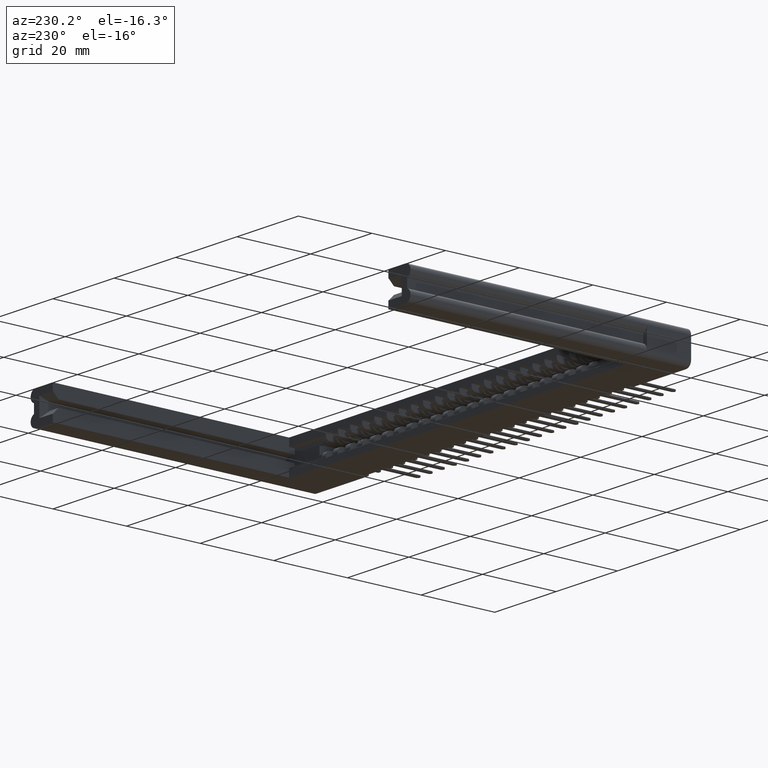
[diagram: clean part render]
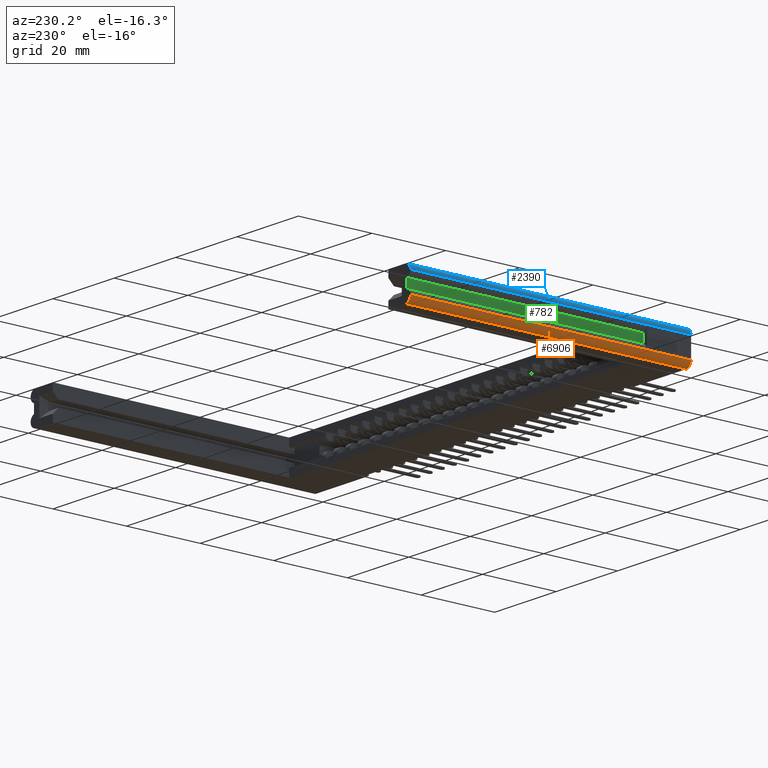
[diagram: same view with three faces highlighted in distinct colors, each labeled with its STEP entity id]
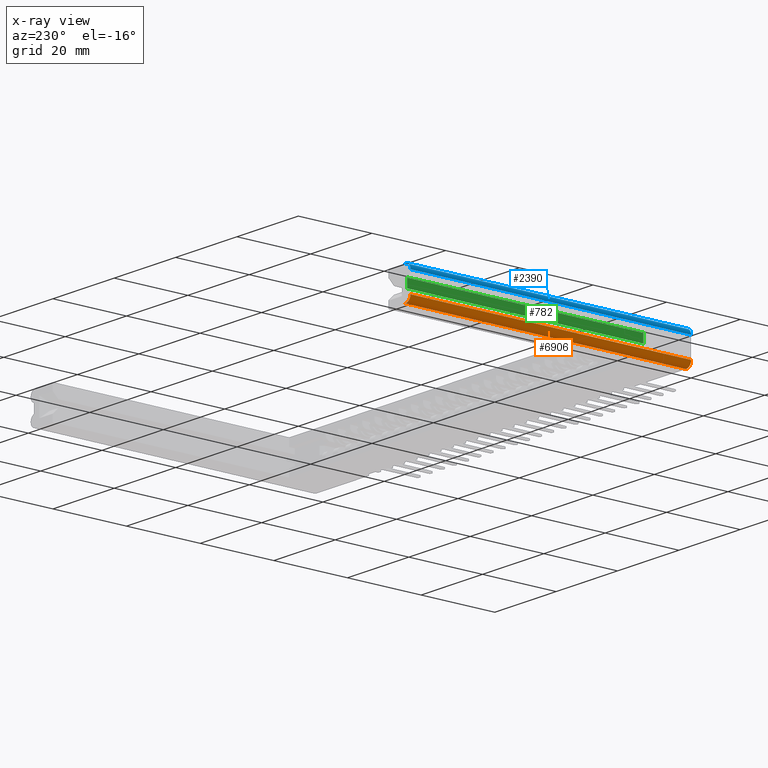
[diagram: x-ray of the same camera — body ghosted, the three highlighted faces saturated]
A machine part, auxiliary view with three faces highlighted in distinct colors.
The next image is the same camera in x-ray (body ghosted, the three faces saturated) — at least one of them is partly hidden behind the body in this view.
Their STEP definitions:

[orange] entity #6906 — the highlighted cylindrical surface (edge-blend (fillet) strip) has radius 1.6256 mm, axis along (-0, -1, 0).
#366 = VECTOR ( 'NONE', #16451, 39.37007874015748100 ) ;
#2374 = AXIS2_PLACEMENT_3D ( 'NONE', #6125, #18831, #7995 ) ;
#2595 = EDGE_CURVE ( 'NONE', #3967, #17477, #20275, .T. ) ;
#3131 = ORIENTED_EDGE ( 'NONE', *, *, #4844, .F. ) ;
#3291 = VERTEX_POINT ( 'NONE', #6672 ) ;
#3967 = VERTEX_POINT ( 'NONE', #7361 ) ;
#4193 = EDGE_CURVE ( 'NONE', #14215, #3967, #9808, .T. ) ;
#4844 = EDGE_CURVE ( 'NONE', #17477, #3291, #14884, .T. ) ;
#5254 = EDGE_CURVE ( 'NONE', #3291, #14215, #15733, .T. ) ;
#6125 = CARTESIAN_POINT ( 'NONE',  ( 0.06400000000000118100, 2.999999999999999600, -0.1075000000000000100 ) ) ;
#6672 = CARTESIAN_POINT ( 'NONE',  ( 0.06400000000000000100, 0.0000000000000000000, -0.1715000000000000100 ) ) ;
#6906 = ADVANCED_FACE ( 'NONE', ( #22323 ), #7953, .T. ) ;
#7361 = CARTESIAN_POINT ( 'NONE',  ( 1.177302919769926800E-015, 2.999999999999999600, -0.1075000000000000100 ) ) ;
#7884 = CARTESIAN_POINT ( 'NONE',  ( 0.06400000000000000100, 0.0000000000000000000, -0.1075000000000000100 ) ) ;
#7953 = CYLINDRICAL_SURFACE ( 'NONE', #11198, 0.06400000000000000100 ) ;
#7995 = DIRECTION ( 'NONE',  ( 1.000000000000000000, 0.0000000000000000000, 0.0000000000000000000 ) ) ;
#9582 = DIRECTION ( 'NONE',  ( -3.924343065899756400E-016, -1.000000000000000000, 0.0000000000000000000 ) ) ;
#9744 = DIRECTION ( 'NONE',  ( 0.0000000000000000000, 0.0000000000000000000, 1.000000000000000000 ) ) ;
#9808 = CIRCLE ( 'NONE', #2374, 0.06400000000000000100 ) ;
#10281 = DIRECTION ( 'NONE',  ( -3.924343065899756400E-016, -1.000000000000000000, 0.0000000000000000000 ) ) ;
#10742 = VECTOR ( 'NONE', #10281, 39.37007874015748100 ) ;
#11198 = AXIS2_PLACEMENT_3D ( 'NONE', #22140, #9582, #21980 ) ;
#11904 = CARTESIAN_POINT ( 'NONE',  ( 0.06400000000000125000, 2.999999999999999600, -0.1715000000000000100 ) ) ;
#12776 = CARTESIAN_POINT ( 'NONE',  ( 1.177302919769926800E-015, 2.999999999999999600, -0.1075000000000000100 ) ) ;
#14215 = VERTEX_POINT ( 'NONE', #11904 ) ;
#14884 = CIRCLE ( 'NONE', #20314, 0.06400000000000000100 ) ;
#15733 = LINE ( 'NONE', #18171, #366 ) ;
#16451 = DIRECTION ( 'NONE',  ( 3.924343065899756400E-016, 1.000000000000000000, -0.0000000000000000000 ) ) ;
#17477 = VERTEX_POINT ( 'NONE', #20490 ) ;
#18171 = CARTESIAN_POINT ( 'NONE',  ( 0.06400000000000000100, -2.511579562175844200E-017, -0.1715000000000000100 ) ) ;
#18831 = DIRECTION ( 'NONE',  ( -1.920455531574183000E-015, 1.000000000000000000, -0.0000000000000000000 ) ) ;
#20275 = LINE ( 'NONE', #12776, #10742 ) ;
#20314 = AXIS2_PLACEMENT_3D ( 'NONE', #7884, #20493, #9744 ) ;
#20490 = CARTESIAN_POINT ( 'NONE',  ( 0.0000000000000000000, 0.0000000000000000000, -0.1075000000000000100 ) ) ;
#20493 = DIRECTION ( 'NONE',  ( -0.0000000000000000000, -1.000000000000000000, -0.0000000000000000000 ) ) ;
#21291 = ORIENTED_EDGE ( 'NONE', *, *, #2595, .F. ) ;
#21314 = EDGE_LOOP ( 'NONE', ( #22819, #22947, #3131, #21291 ) ) ;
#21980 = DIRECTION ( 'NONE',  ( 1.000000000000000000, 0.0000000000000000000, 0.0000000000000000000 ) ) ;
#22140 = CARTESIAN_POINT ( 'NONE',  ( 0.06400000000000118100, 2.999999999999999600, -0.1075000000000000100 ) ) ;
#22323 = FACE_OUTER_BOUND ( 'NONE', #21314, .T. ) ;
#22819 = ORIENTED_EDGE ( 'NONE', *, *, #4193, .F. ) ;
#22947 = ORIENTED_EDGE ( 'NONE', *, *, #5254, .F. ) ;

[blue] entity #2390 — the highlighted cylindrical surface (edge-blend (fillet) strip) has radius 1.6256 mm, axis along (0, 1, 0).
#53 = DIRECTION ( 'NONE',  ( -3.924343065899756400E-016, -1.000000000000000000, 0.0000000000000000000 ) ) ;
#1674 = DIRECTION ( 'NONE',  ( -1.000000000000000000, 3.924343065899756400E-016, 0.0000000000000000000 ) ) ;
#1710 = DIRECTION ( 'NONE',  ( 3.924343065899756400E-016, 1.000000000000000000, 0.0000000000000000000 ) ) ;
#2028 = CARTESIAN_POINT ( 'NONE',  ( 0.06400000000000000100, -2.511579562175844200E-017, 0.1075000000000000000 ) ) ;
#2390 = ADVANCED_FACE ( 'NONE', ( #20014 ), #5547, .T. ) ;
#4378 = EDGE_CURVE ( 'NONE', #20551, #9149, #11224, .T. ) ;
#4652 = ORIENTED_EDGE ( 'NONE', *, *, #4378, .F. ) ;
#5547 = CYLINDRICAL_SURFACE ( 'NONE', #19649, 0.06400000000000000100 ) ;
#5959 = AXIS2_PLACEMENT_3D ( 'NONE', #17101, #6191, #18892 ) ;
#6191 = DIRECTION ( 'NONE',  ( -1.920455531574183000E-015, 1.000000000000000000, -0.0000000000000000000 ) ) ;
#8392 = DIRECTION ( 'NONE',  ( 3.924343065899756400E-016, 1.000000000000000000, -0.0000000000000000000 ) ) ;
#8463 = CIRCLE ( 'NONE', #5959, 0.06400000000000000100 ) ;
#8827 = EDGE_CURVE ( 'NONE', #9149, #13094, #8463, .T. ) ;
#9149 = VERTEX_POINT ( 'NONE', #14424 ) ;
#9367 = DIRECTION ( 'NONE',  ( -0.0000000000000000000, -1.000000000000000000, -0.0000000000000000000 ) ) ;
#10905 = VERTEX_POINT ( 'NONE', #14904 ) ;
#11224 = LINE ( 'NONE', #13887, #20745 ) ;
#11573 = AXIS2_PLACEMENT_3D ( 'NONE', #20151, #9367, #21933 ) ;
#11906 = LINE ( 'NONE', #21981, #20857 ) ;
#12152 = ORIENTED_EDGE ( 'NONE', *, *, #21700, .F. ) ;
#12354 = CARTESIAN_POINT ( 'NONE',  ( 0.06400000000000125000, 2.999999999999999600, 0.1715000000000000100 ) ) ;
#13094 = VERTEX_POINT ( 'NONE', #12354 ) ;
#13887 = CARTESIAN_POINT ( 'NONE',  ( 1.177302919769926800E-015, 2.999999999999999600, 0.1075000000000000000 ) ) ;
#14424 = CARTESIAN_POINT ( 'NONE',  ( 1.177302919769926800E-015, 2.999999999999999600, 0.1075000000000000000 ) ) ;
#14904 = CARTESIAN_POINT ( 'NONE',  ( 0.06400000000000000100, 0.0000000000000000000, 0.1715000000000000100 ) ) ;
#17101 = CARTESIAN_POINT ( 'NONE',  ( 0.06400000000000118100, 2.999999999999999600, 0.1075000000000000000 ) ) ;
#17774 = ORIENTED_EDGE ( 'NONE', *, *, #8827, .F. ) ;
#18137 = CIRCLE ( 'NONE', #11573, 0.06400000000000000100 ) ;
#18212 = EDGE_LOOP ( 'NONE', ( #17774, #4652, #12152, #20866 ) ) ;
#18418 = CARTESIAN_POINT ( 'NONE',  ( 0.0000000000000000000, 0.0000000000000000000, 0.1075000000000000000 ) ) ;
#18892 = DIRECTION ( 'NONE',  ( 1.000000000000000000, 0.0000000000000000000, 0.0000000000000000000 ) ) ;
#19649 = AXIS2_PLACEMENT_3D ( 'NONE', #2028, #1710, #1674 ) ;
#20014 = FACE_OUTER_BOUND ( 'NONE', #18212, .T. ) ;
#20151 = CARTESIAN_POINT ( 'NONE',  ( 0.06400000000000000100, 0.0000000000000000000, 0.1075000000000000000 ) ) ;
#20551 = VERTEX_POINT ( 'NONE', #18418 ) ;
#20745 = VECTOR ( 'NONE', #8392, 39.37007874015748100 ) ;
#20857 = VECTOR ( 'NONE', #53, 39.37007874015748100 ) ;
#20866 = ORIENTED_EDGE ( 'NONE', *, *, #22376, .F. ) ;
#21700 = EDGE_CURVE ( 'NONE', #10905, #20551, #18137, .T. ) ;
#21933 = DIRECTION ( 'NONE',  ( 0.0000000000000000000, 0.0000000000000000000, 1.000000000000000000 ) ) ;
#21981 = CARTESIAN_POINT ( 'NONE',  ( 0.06400000000000000100, -2.511579562175844200E-017, 0.1715000000000000100 ) ) ;
#22376 = EDGE_CURVE ( 'NONE', #13094, #10905, #11906, .T. ) ;

[green] entity #782 — the highlighted planar face has unit normal (1, 0, 0).
#630 = PLANE ( 'NONE',  #23039 ) ;
#782 = ADVANCED_FACE ( 'NONE', ( #13669 ), #630, .F. ) ;
#1132 = CARTESIAN_POINT ( 'NONE',  ( 0.04399999999999999700, 0.3701165708192027900, -0.04650000000000000000 ) ) ;
#1214 = EDGE_CURVE ( 'NONE', #15932, #4327, #22013, .T. ) ;
#1492 = CARTESIAN_POINT ( 'NONE',  ( 0.04399999999999999700, 0.4729999999999994200, -0.04650000000000000000 ) ) ;
#3489 = DIRECTION ( 'NONE',  ( 1.000000000000000000, 0.0000000000000000000, -0.0000000000000000000 ) ) ;
#3651 = CARTESIAN_POINT ( 'NONE',  ( 0.04399999999999999700, 0.3701165708192027900, 0.04650000000000000000 ) ) ;
#4327 = VERTEX_POINT ( 'NONE', #10163 ) ;
#5184 = DIRECTION ( 'NONE',  ( -0.0000000000000000000, 0.0000000000000000000, -1.000000000000000000 ) ) ;
#5343 = ORIENTED_EDGE ( 'NONE', *, *, #1214, .F. ) ;
#5741 = LINE ( 'NONE', #3651, #11237 ) ;
#5977 = VECTOR ( 'NONE', #9391, 39.37007874015748100 ) ;
#6161 = CARTESIAN_POINT ( 'NONE',  ( 0.04399999999999999700, 3.000000000000000400, 0.04650000000000000000 ) ) ;
#6558 = LINE ( 'NONE', #11240, #5977 ) ;
#7641 = VECTOR ( 'NONE', #7895, 39.37007874015748100 ) ;
#7726 = CARTESIAN_POINT ( 'NONE',  ( 0.04399999999999999700, 0.4729999999999994200, -0.04650000000000000000 ) ) ;
#7895 = DIRECTION ( 'NONE',  ( -0.0000000000000000000, 1.000000000000000000, -0.0000000000000000000 ) ) ;
#7996 = CARTESIAN_POINT ( 'NONE',  ( 0.04399999999999999700, 0.3701165708192027900, -0.04650000000000000000 ) ) ;
#9161 = ORIENTED_EDGE ( 'NONE', *, *, #15106, .T. ) ;
#9246 = ORIENTED_EDGE ( 'NONE', *, *, #15480, .F. ) ;
#9391 = DIRECTION ( 'NONE',  ( -0.0000000000000000000, -0.0000000000000000000, -1.000000000000000000 ) ) ;
#10163 = CARTESIAN_POINT ( 'NONE',  ( 0.04399999999999999700, 2.999999999999999600, -0.04650000000000000000 ) ) ;
#11237 = VECTOR ( 'NONE', #21797, 39.37007874015748100 ) ;
#11240 = CARTESIAN_POINT ( 'NONE',  ( 0.04399999999999999700, 3.000000000000000400, -0.04650000000000000000 ) ) ;
#13383 = ORIENTED_EDGE ( 'NONE', *, *, #16059, .T. ) ;
#13669 = FACE_OUTER_BOUND ( 'NONE', #21866, .T. ) ;
#15106 = EDGE_CURVE ( 'NONE', #22310, #18043, #5741, .T. ) ;
#15480 = EDGE_CURVE ( 'NONE', #22310, #15932, #20742, .T. ) ;
#15932 = VERTEX_POINT ( 'NONE', #1492 ) ;
#16015 = VECTOR ( 'NONE', #22144, 39.37007874015748100 ) ;
#16059 = EDGE_CURVE ( 'NONE', #18043, #4327, #6558, .T. ) ;
#18043 = VERTEX_POINT ( 'NONE', #6161 ) ;
#20742 = LINE ( 'NONE', #7726, #16015 ) ;
#21765 = CARTESIAN_POINT ( 'NONE',  ( 0.04399999999999999700, 0.4729999999999994200, 0.04650000000000000000 ) ) ;
#21797 = DIRECTION ( 'NONE',  ( -0.0000000000000000000, 1.000000000000000000, -0.0000000000000000000 ) ) ;
#21866 = EDGE_LOOP ( 'NONE', ( #9161, #13383, #5343, #9246 ) ) ;
#22013 = LINE ( 'NONE', #7996, #7641 ) ;
#22144 = DIRECTION ( 'NONE',  ( 0.0000000000000000000, 0.0000000000000000000, -1.000000000000000000 ) ) ;
#22310 = VERTEX_POINT ( 'NONE', #21765 ) ;
#23039 = AXIS2_PLACEMENT_3D ( 'NONE', #1132, #3489, #5184 ) ;